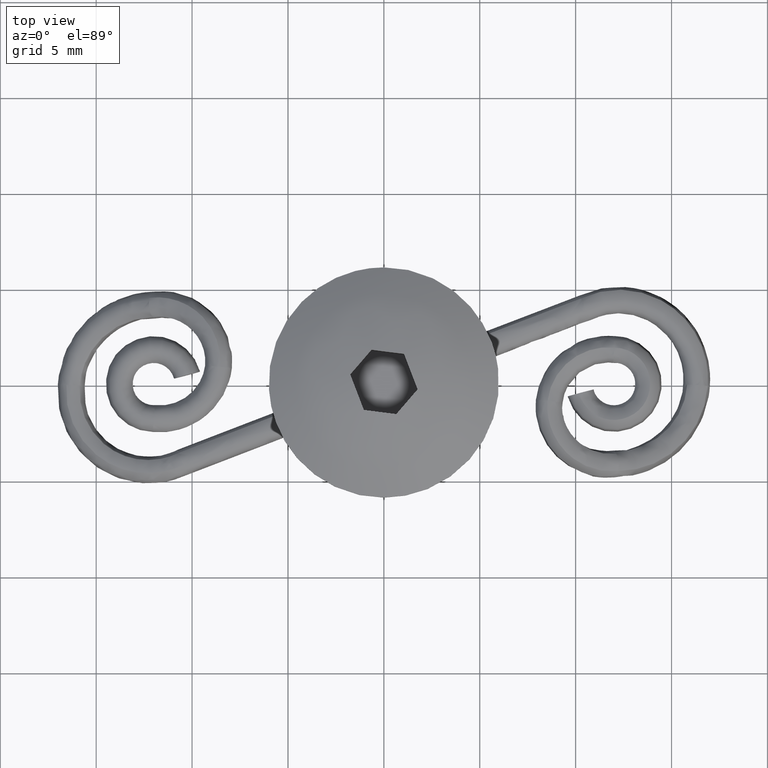
[diagram: clean part render]
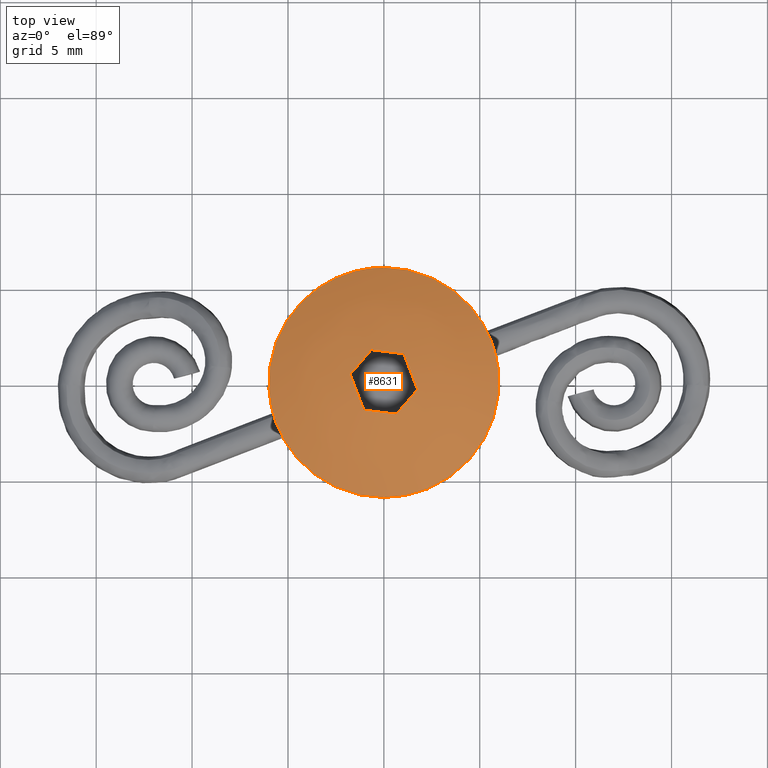
[diagram: same view with one face highlighted and labeled with its STEP entity id]
A machine part, top view. The second image highlights one B-rep face of the part: STEP entity #8631.
In plain terms, the highlighted face is a freeform B-spline surface patch.
Its self-contained STEP definition (entity closure, byte-faithful):
#6555=CARTESIAN_POINT('',(-0.708203505715640,5.958057384289647,7.351576000000001));
#6556=VERTEX_POINT('',#6555);
#6562=CARTESIAN_POINT('',(6.0,0.0,7.351576000000001));
#6563=VERTEX_POINT('',#6562);
#6564=CARTESIAN_POINT('',(-0.708203505715640,5.958057384289647,7.351576000000001));
#6565=CARTESIAN_POINT('',(-0.355343756744011,6.0,7.351576000000001));
#6566=CARTESIAN_POINT('',(0.0,6.0,7.351576000000001));
#6567=CARTESIAN_POINT('',(6.0,6.0,7.351576000000001));
#6568=CARTESIAN_POINT('',(6.0,0.0,7.351576000000001));
#6576=(BOUNDED_CURVE()B_SPLINE_CURVE(2,(#6564,#6565,#6566,#6567,#6568),.UNSPECIFIED.,.F.,.U.)B_SPLINE_CURVE_WITH_KNOTS((3,2,3),(0.229562527473199,0.250000000000000,0.500000000000000),.UNSPECIFIED.)CURVE()GEOMETRIC_REPRESENTATION_ITEM()RATIONAL_B_SPLINE_CURVE((0.956026859946929,0.976056011548856,1.0,0.707106781186548,1.0))REPRESENTATION_ITEM(''));
#6577=EDGE_CURVE('',#6556,#6563,#6576,.T.);
#6579=CARTESIAN_POINT('',(0.366282989391396,-5.988809294977943,7.351576000000000));
#6580=VERTEX_POINT('',#6579);
#6581=CARTESIAN_POINT('',(6.0,0.0,7.351576000000001));
#6582=CARTESIAN_POINT('',(6.0,-5.644244189235281,7.351576000000001));
#6583=CARTESIAN_POINT('',(0.366282989391396,-5.988809294977943,7.351576000000000));
#6591=(BOUNDED_CURVE()B_SPLINE_CURVE(2,(#6581,#6582,#6583),.UNSPECIFIED.,.F.,.U.)B_SPLINE_CURVE_WITH_KNOTS((3,3),(0.500000000000000,0.739333199874322),.UNSPECIFIED.)CURVE()GEOMETRIC_REPRESENTATION_ITEM()RATIONAL_B_SPLINE_CURVE((1.0,0.719603714879546,0.976072550965099))REPRESENTATION_ITEM(''));
#6592=EDGE_CURVE('',#6563,#6580,#6591,.T.);
#6666=CARTESIAN_POINT('',(-6.0,0.0,7.351576000000001));
#6667=VERTEX_POINT('',#6666);
#6668=CARTESIAN_POINT('',(0.366282989391396,-5.988809294977943,7.351576000000000));
#6669=CARTESIAN_POINT('',(0.183312444320055,-6.0,7.351576000000001));
#6670=CARTESIAN_POINT('',(0.0,-6.0,7.351576000000001));
#6671=CARTESIAN_POINT('',(-6.0,-6.0,7.351576000000001));
#6672=CARTESIAN_POINT('',(-6.0,0.0,7.351576000000001));
#6680=(BOUNDED_CURVE()B_SPLINE_CURVE(2,(#6668,#6669,#6670,#6671,#6672),.UNSPECIFIED.,.F.,.U.)B_SPLINE_CURVE_WITH_KNOTS((3,2,3),(0.739333199874322,0.750000000000000,1.0),.UNSPECIFIED.)CURVE()GEOMETRIC_REPRESENTATION_ITEM()RATIONAL_B_SPLINE_CURVE((0.976072550965099,0.987503066307001,1.0,0.707106781186548,1.0))REPRESENTATION_ITEM(''));
#6681=EDGE_CURVE('',#6580,#6667,#6680,.T.);
#6683=CARTESIAN_POINT('',(-6.0,0.0,7.351576000000001));
#6684=CARTESIAN_POINT('',(-6.0,5.329048869087021,7.351576000000001));
#6685=CARTESIAN_POINT('',(-0.708203505715640,5.958057384289647,7.351576000000001));
#6693=(BOUNDED_CURVE()B_SPLINE_CURVE(2,(#6683,#6684,#6685),.UNSPECIFIED.,.F.,.U.)B_SPLINE_CURVE_WITH_KNOTS((3,3),(0.0,0.229562527473199),.UNSPECIFIED.)CURVE()GEOMETRIC_REPRESENTATION_ITEM()RATIONAL_B_SPLINE_CURVE((1.0,0.731050769637692,0.956026859946929))REPRESENTATION_ITEM(''));
#6694=EDGE_CURVE('',#6667,#6556,#6693,.T.);
#8331=CARTESIAN_POINT('',(-1.466449976411212,1.043791635455000,8.816381704553610));
#8332=VERTEX_POINT('',#8331);
#8333=CARTESIAN_POINT('',(-1.680441785928090,-0.645069735965361,8.816380737328601));
#8334=VERTEX_POINT('',#8333);
#8335=CARTESIAN_POINT('',(-1.466449976411212,1.043791635455000,8.816381704553610));
#8336=CARTESIAN_POINT('',(-1.573445885512529,0.199360915470053,8.877188886328149));
#8337=CARTESIAN_POINT('',(-1.680441785928090,-0.645069735965361,8.816380737328601));
#8345=(BOUNDED_CURVE()B_SPLINE_CURVE(2,(#8335,#8336,#8337),.UNSPECIFIED.,.F.,.U.)CURVE()GEOMETRIC_REPRESENTATION_ITEM()QUASI_UNIFORM_CURVE()RATIONAL_B_SPLINE_CURVE((1.0,0.997457956120757,1.0))REPRESENTATION_ITEM(''));
#8346=EDGE_CURVE('',#8332,#8334,#8345,.T.);
#8367=CARTESIAN_POINT('',(0.391351514890980,1.756935112544535,8.816381684144671));
#8368=VERTEX_POINT('',#8367);
#8369=CARTESIAN_POINT('',(0.391351514890980,1.756935112544535,8.816381684144671));
#8370=CARTESIAN_POINT('',(-0.537549229964556,1.400363374305156,8.899471614123407));
#8371=CARTESIAN_POINT('',(-1.466449976411212,1.043791635455000,8.816381704553610));
#8379=(BOUNDED_CURVE()B_SPLINE_CURVE(2,(#8369,#8370,#8371),.UNSPECIFIED.,.F.,.U.)CURVE()GEOMETRIC_REPRESENTATION_ITEM()QUASI_UNIFORM_CURVE()RATIONAL_B_SPLINE_CURVE((1.0,0.996531295953860,1.0))REPRESENTATION_ITEM(''));
#8380=EDGE_CURVE('',#8368,#8332,#8379,.T.);
#8397=CARTESIAN_POINT('',(1.680447567678495,0.645055355959406,8.816380700407429));
#8398=VERTEX_POINT('',#8397);
#8399=CARTESIAN_POINT('',(1.680447567678495,0.645055355959406,8.816380700407411));
#8400=CARTESIAN_POINT('',(1.035899567893075,1.200995211301570,8.877188857809385));
#8401=CARTESIAN_POINT('',(0.391351514890980,1.756935112544535,8.816381684144671));
#8409=(BOUNDED_CURVE()B_SPLINE_CURVE(2,(#8399,#8400,#8401),.UNSPECIFIED.,.F.,.U.)CURVE()GEOMETRIC_REPRESENTATION_ITEM()QUASI_UNIFORM_CURVE()RATIONAL_B_SPLINE_CURVE((1.0,0.997457956108573,1.0))REPRESENTATION_ITEM(''));
#8410=EDGE_CURVE('',#8398,#8368,#8409,.T.);
#8427=CARTESIAN_POINT('',(1.466455758161618,-1.043806015460954,8.816379733182341));
#8428=VERTEX_POINT('',#8427);
#8429=CARTESIAN_POINT('',(1.466455758161618,-1.043806015460954,8.816379733182341));
#8430=CARTESIAN_POINT('',(1.573451658577180,-0.199375364025558,8.877187887306624));
#8431=CARTESIAN_POINT('',(1.680447567678495,0.645055355959406,8.816380700407429));
#8439=(BOUNDED_CURVE()B_SPLINE_CURVE(2,(#8429,#8430,#8431),.UNSPECIFIED.,.F.,.U.)CURVE()GEOMETRIC_REPRESENTATION_ITEM()QUASI_UNIFORM_CURVE()RATIONAL_B_SPLINE_CURVE((1.0,0.997457955693917,1.0))REPRESENTATION_ITEM(''));
#8440=EDGE_CURVE('',#8428,#8398,#8439,.T.);
#8457=CARTESIAN_POINT('',(-0.391345733140574,-1.756949492550490,8.816379753591290));
#8458=VERTEX_POINT('',#8457);
#8459=CARTESIAN_POINT('',(-0.391345733140571,-1.756949492550491,8.816379753591278));
#8460=CARTESIAN_POINT('',(0.537555013306086,-1.400377753700335,8.899469676766469));
#8461=CARTESIAN_POINT('',(1.466455758161618,-1.043806015460955,8.816379733182330));
#8469=(BOUNDED_CURVE()B_SPLINE_CURVE(2,(#8459,#8460,#8461),.UNSPECIFIED.,.F.,.U.)CURVE()GEOMETRIC_REPRESENTATION_ITEM()QUASI_UNIFORM_CURVE()RATIONAL_B_SPLINE_CURVE((1.0,0.996531294823813,1.0))REPRESENTATION_ITEM(''));
#8470=EDGE_CURVE('',#8458,#8428,#8469,.T.);
#8487=CARTESIAN_POINT('',(-1.680441785928090,-0.645069735965361,8.816380737328601));
#8488=CARTESIAN_POINT('',(-1.035893732926001,-1.201009637208322,8.877187915825392));
#8489=CARTESIAN_POINT('',(-0.391345733140574,-1.756949492550490,8.816379753591290));
#8497=(BOUNDED_CURVE()B_SPLINE_CURVE(2,(#8487,#8488,#8489),.UNSPECIFIED.,.F.,.U.)CURVE()GEOMETRIC_REPRESENTATION_ITEM()QUASI_UNIFORM_CURVE()RATIONAL_B_SPLINE_CURVE((1.0,0.997457955706102,1.0))REPRESENTATION_ITEM(''));
#8498=EDGE_CURVE('',#8334,#8458,#8497,.T.);
#8593=CARTESIAN_POINT('',(-6.031030317990590,-6.030896872159546,5.413773559621763));
#8594=CARTESIAN_POINT('',(-3.254387448960450,-6.508630881255500,7.042595914075585));
#8595=CARTESIAN_POINT('',(3.254387332206186,-6.508630881255500,7.042595914075585));
#8596=CARTESIAN_POINT('',(6.031030133384609,-6.030896903921847,5.413773667914538));
#8597=CARTESIAN_POINT('',(-6.508752081859525,-3.254304032849483,7.042518124996715));
#8598=CARTESIAN_POINT('',(-3.534346254776582,-3.534268051924286,8.951578999999995));
#8599=CARTESIAN_POINT('',(3.534346127978528,-3.534268051924286,8.951578999999995));
#8600=CARTESIAN_POINT('',(6.508751885346038,-3.254304051346186,7.042518251124828));
#8601=CARTESIAN_POINT('',(-6.508752081859525,3.254322596712450,7.042518124996715));
#8602=CARTESIAN_POINT('',(-3.534346254776582,3.534288212814952,8.951578999999995));
#8603=CARTESIAN_POINT('',(3.534346127978528,3.534288212814952,8.951578999999995));
#8604=CARTESIAN_POINT('',(6.508751885346038,3.254322615209260,7.042518251124828));
#8605=CARTESIAN_POINT('',(-6.031025267775102,6.030926224695580,5.413756341417251));
#8606=CARTESIAN_POINT('',(-3.254384507958140,6.508662127203564,7.042575859969237));
#8607=CARTESIAN_POINT('',(3.254384391203982,6.508662127203564,7.042575859969237));
#8608=CARTESIAN_POINT('',(6.031025083169247,6.030926256458009,5.413756449709844));
#8616=(BOUNDED_SURFACE()B_SPLINE_SURFACE(2,2,((#8593,#8597,#8601,#8605),(#8594,#8598,#8602,#8606),(#8595,#8599,#8603,#8607),(#8596,#8600,#8604,#8608)),.UNSPECIFIED.,.F.,.F.,.U.)B_SPLINE_SURFACE_WITH_KNOTS((3,1,3),(3,1,3),(0.0,6.777182381931364,13.554364520724819),(0.0,6.777032426337142,13.554103511601060),.UNSPECIFIED.)GEOMETRIC_REPRESENTATION_ITEM()RATIONAL_B_SPLINE_SURFACE(((1.172053884137711,1.086028845568453,1.086028845568453,1.172054865583554),(1.086025038569258,1.0,1.0,1.086026020015101),(1.086025038569258,1.0,1.0,1.086026020015101),(1.172053877964976,1.086028839395719,1.086028839395719,1.172054859410819)))REPRESENTATION_ITEM('')SURFACE());
#8617=ORIENTED_EDGE('',*,*,#6681,.F.);
#8618=ORIENTED_EDGE('',*,*,#6592,.F.);
#8619=ORIENTED_EDGE('',*,*,#6577,.F.);
#8620=ORIENTED_EDGE('',*,*,#6694,.F.);
#8621=EDGE_LOOP('',(#8617,#8618,#8619,#8620));
#8622=FACE_OUTER_BOUND('',#8621,.T.);
#8623=ORIENTED_EDGE('',*,*,#8498,.F.);
#8624=ORIENTED_EDGE('',*,*,#8346,.F.);
#8625=ORIENTED_EDGE('',*,*,#8380,.F.);
#8626=ORIENTED_EDGE('',*,*,#8410,.F.);
#8627=ORIENTED_EDGE('',*,*,#8440,.F.);
#8628=ORIENTED_EDGE('',*,*,#8470,.F.);
#8629=EDGE_LOOP('',(#8623,#8624,#8625,#8626,#8627,#8628));
#8630=FACE_BOUND('',#8629,.T.);
#8631=ADVANCED_FACE('',(#8622,#8630),#8616,.T.);